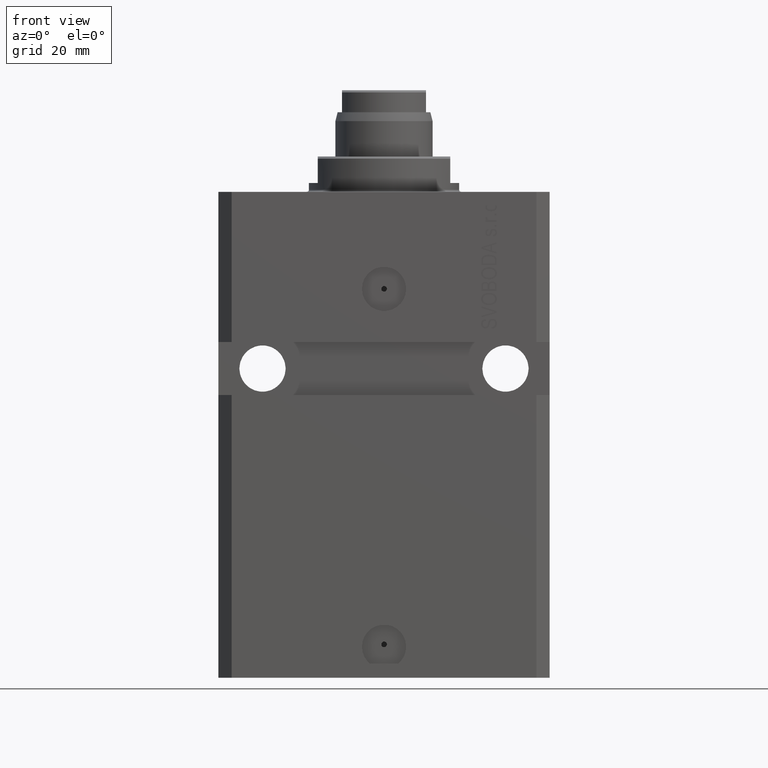
[diagram: clean part render]
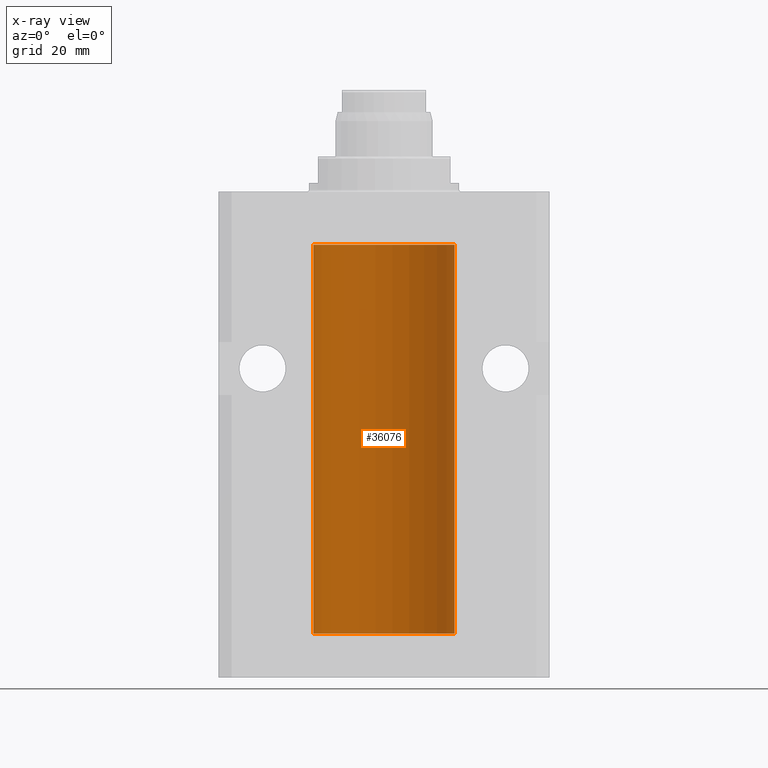
[diagram: x-ray — body ghosted, one internal face saturated and labeled with its STEP entity id]
A machine part, front view, then the same camera in x-ray: the body is ghosted and one INTERNAL B-rep face — a face not visible from any outside direction — is saturated and labeled: STEP entity #36076.
In plain terms, the highlighted cylindrical surface (partial cylindrical patch) has radius 16 mm, axis along (0, 0, 1).
Its self-contained STEP definition (entity closure, byte-faithful):
#2763 = CARTESIAN_POINT ( 'NONE',  ( -16.00000000000000000, 1.959434878635765131E-15, -99.99999999999998579 ) ) ;
#4141 = CYLINDRICAL_SURFACE ( 'NONE', #26276, 16.00000000000000000 ) ;
#4386 = VERTEX_POINT ( 'NONE', #2763 ) ;
#6720 = DIRECTION ( 'NONE',  ( -0.000000000000000000, -0.000000000000000000, 1.000000000000000000 ) ) ;
#7773 = EDGE_CURVE ( 'NONE', #18201, #4386, #37160, .T. ) ;
#8432 = VERTEX_POINT ( 'NONE', #9449 ) ;
#9449 = CARTESIAN_POINT ( 'NONE',  ( 16.00000000000000000, 0.000000000000000000, -12.00000000000000000 ) ) ;
#10017 = DIRECTION ( 'NONE',  ( 1.000000000000000000, 0.000000000000000000, 0.000000000000000000 ) ) ;
#11607 = DIRECTION ( 'NONE',  ( -0.000000000000000000, -0.000000000000000000, 1.000000000000000000 ) ) ;
#12476 = VECTOR ( 'NONE', #26919, 1000.000000000000000 ) ;
#12644 = CARTESIAN_POINT ( 'NONE',  ( -16.00000000000000000, 1.959434878635765131E-15, -99.99999999999998579 ) ) ;
#15296 = DIRECTION ( 'NONE',  ( 0.000000000000000000, 0.000000000000000000, 1.000000000000000000 ) ) ;
#17703 = FACE_OUTER_BOUND ( 'NONE', #44067, .T. ) ;
#18201 = VERTEX_POINT ( 'NONE', #30306 ) ;
#18475 = AXIS2_PLACEMENT_3D ( 'NONE', #31328, #27807, #10017 ) ;
#19555 = LINE ( 'NONE', #32922, #23003 ) ;
#20395 = EDGE_CURVE ( 'NONE', #8432, #38865, #33368, .T. ) ;
#20652 = AXIS2_PLACEMENT_3D ( 'NONE', #43840, #15296, #26300 ) ;
#20992 = DIRECTION ( 'NONE',  ( 1.000000000000000000, 0.000000000000000000, 0.000000000000000000 ) ) ;
#21997 = EDGE_CURVE ( 'NONE', #4386, #38865, #44472, .T. ) ;
#23003 = VECTOR ( 'NONE', #11607, 1000.000000000000000 ) ;
#23421 = EDGE_CURVE ( 'NONE', #18201, #8432, #19555, .T. ) ;
#24503 = CARTESIAN_POINT ( 'NONE',  ( 0.000000000000000000, 0.000000000000000000, -99.99999999999998579 ) ) ;
#25663 = ORIENTED_EDGE ( 'NONE', *, *, #21997, .F. ) ;
#26276 = AXIS2_PLACEMENT_3D ( 'NONE', #24503, #6720, #20992 ) ;
#26300 = DIRECTION ( 'NONE',  ( 1.000000000000000000, 0.000000000000000000, 0.000000000000000000 ) ) ;
#26919 = DIRECTION ( 'NONE',  ( -0.000000000000000000, -0.000000000000000000, 1.000000000000000000 ) ) ;
#27807 = DIRECTION ( 'NONE',  ( 0.000000000000000000, 0.000000000000000000, 1.000000000000000000 ) ) ;
#30041 = ORIENTED_EDGE ( 'NONE', *, *, #7773, .F. ) ;
#30306 = CARTESIAN_POINT ( 'NONE',  ( 16.00000000000000000, 0.000000000000000000, -99.99999999999998579 ) ) ;
#31328 = CARTESIAN_POINT ( 'NONE',  ( 0.000000000000000000, 0.000000000000000000, -99.99999999999998579 ) ) ;
#32922 = CARTESIAN_POINT ( 'NONE',  ( 16.00000000000000000, 0.000000000000000000, -99.99999999999998579 ) ) ;
#33290 = CARTESIAN_POINT ( 'NONE',  ( -16.00000000000000000, 1.959434878635765131E-15, -12.00000000000000000 ) ) ;
#33368 = CIRCLE ( 'NONE', #20652, 16.00000000000000000 ) ;
#33732 = ORIENTED_EDGE ( 'NONE', *, *, #23421, .T. ) ;
#36076 = ADVANCED_FACE ( 'NONE', ( #17703 ), #4141, .F. ) ;
#37160 = CIRCLE ( 'NONE', #18475, 16.00000000000000000 ) ;
#38865 = VERTEX_POINT ( 'NONE', #33290 ) ;
#43840 = CARTESIAN_POINT ( 'NONE',  ( 0.000000000000000000, 0.000000000000000000, -12.00000000000000000 ) ) ;
#44067 = EDGE_LOOP ( 'NONE', ( #25663, #30041, #33732, #45859 ) ) ;
#44472 = LINE ( 'NONE', #12644, #12476 ) ;
#45859 = ORIENTED_EDGE ( 'NONE', *, *, #20395, .T. ) ;